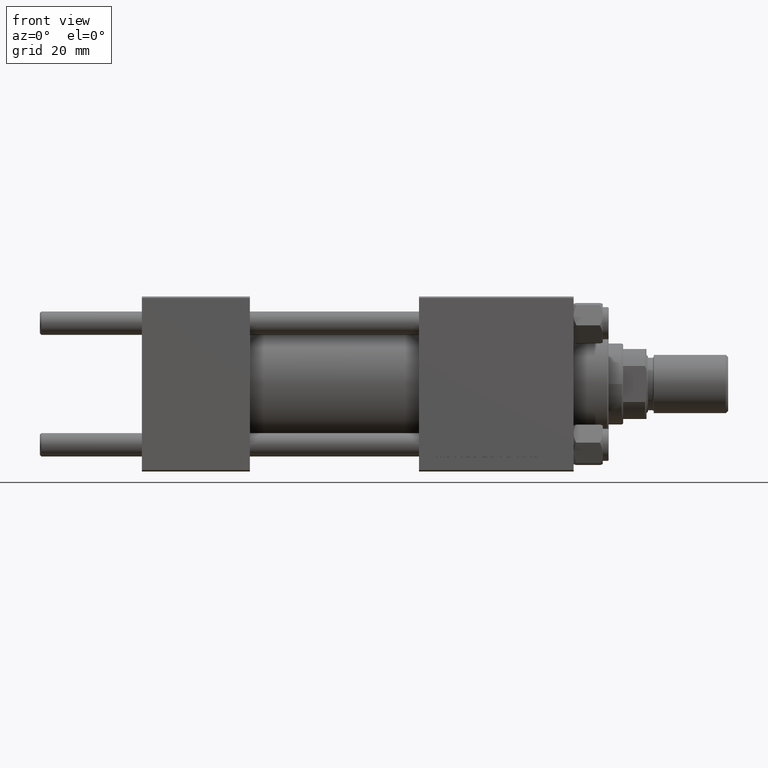
[diagram: clean part render]
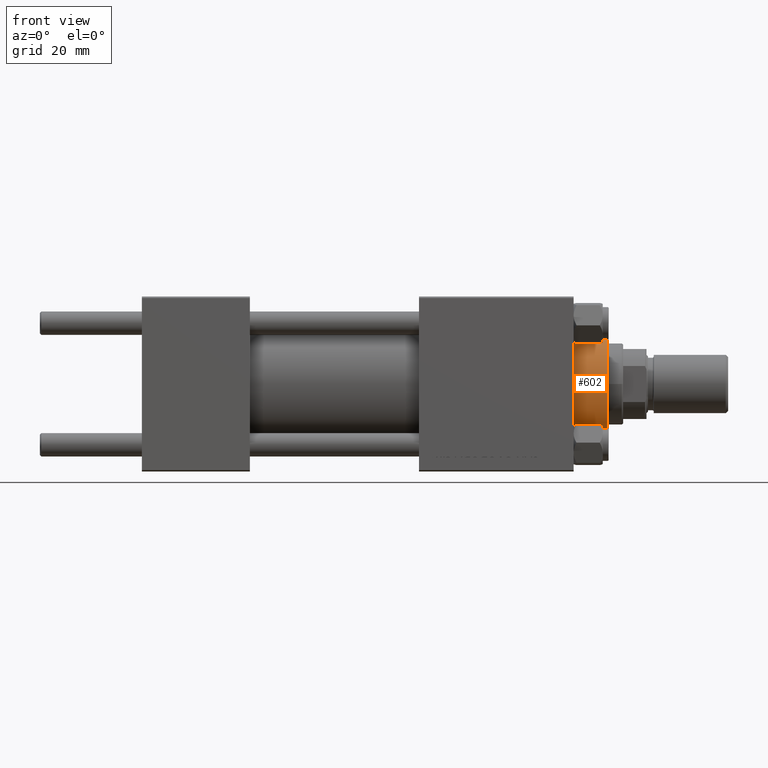
[diagram: same view with one face highlighted and labeled with its STEP entity id]
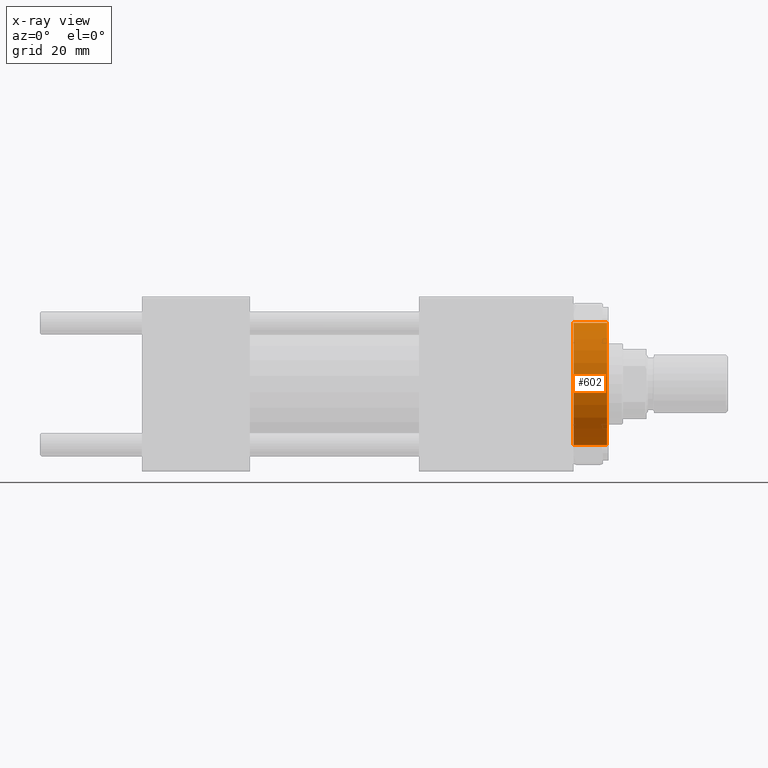
[diagram: x-ray of the same camera — body ghosted, the highlighted face saturated]
A machine part, front view. The second image highlights one B-rep face of the part: STEP entity #602.
The next image is the same camera in x-ray: the body ghosted, the highlighted face saturated — about 0% of this face is hidden behind the body in this view.
In plain terms, the highlighted cylindrical surface (partial cylindrical patch) has radius 21 mm, axis along (-1, -0, 0).
Its self-contained STEP definition (entity closure, byte-faithful):
#602 = ADVANCED_FACE ( 'NONE', ( #48717 ), #17786, .T. ) ;
#1062 = DIRECTION ( 'NONE',  ( 0.000000000000000000, 0.000000000000000000, -1.000000000000000000 ) ) ;
#1782 = CARTESIAN_POINT ( 'NONE',  ( 20.96385542168674831, -1.231570484631379969, 40.19999999999998863 ) ) ;
#4420 = ORIENTED_EDGE ( 'NONE', *, *, #43466, .T. ) ;
#5245 = EDGE_CURVE ( 'NONE', #24619, #6732, #34726, .T. ) ;
#5252 = CARTESIAN_POINT ( 'NONE',  ( 0.000000000000000000, 0.000000000000000000, 40.70000000000000284 ) ) ;
#5376 = LINE ( 'NONE', #21233, #49600 ) ;
#5833 = VERTEX_POINT ( 'NONE', #1782 ) ;
#6732 = VERTEX_POINT ( 'NONE', #16423 ) ;
#8478 = EDGE_CURVE ( 'NONE', #36806, #5833, #5376, .T. ) ;
#10610 = ORIENTED_EDGE ( 'NONE', *, *, #5245, .T. ) ;
#10942 = DIRECTION ( 'NONE',  ( 0.000000000000000000, 0.000000000000000000, -1.000000000000000000 ) ) ;
#11179 = AXIS2_PLACEMENT_3D ( 'NONE', #5252, #21115, #33392 ) ;
#12245 = AXIS2_PLACEMENT_3D ( 'NONE', #46974, #43641, #36491 ) ;
#13337 = DIRECTION ( 'NONE',  ( 1.000000000000000000, 0.000000000000000000, 0.000000000000000000 ) ) ;
#15528 = EDGE_CURVE ( 'NONE', #6732, #36806, #26140, .T. ) ;
#16423 = CARTESIAN_POINT ( 'NONE',  ( -20.96385542168674831, -1.231570484631387741, 28.69999999999999929 ) ) ;
#17786 = CYLINDRICAL_SURFACE ( 'NONE', #11179, 21.00000000000000000 ) ;
#18637 = EDGE_LOOP ( 'NONE', ( #4420, #10610, #27485, #23985 ) ) ;
#21115 = DIRECTION ( 'NONE',  ( -0.000000000000000000, -0.000000000000000000, -1.000000000000000000 ) ) ;
#21233 = CARTESIAN_POINT ( 'NONE',  ( 20.96385542168674831, -1.231570484631384410, 32.20000000000000284 ) ) ;
#23985 = ORIENTED_EDGE ( 'NONE', *, *, #8478, .T. ) ;
#24619 = VERTEX_POINT ( 'NONE', #25523 ) ;
#25523 = CARTESIAN_POINT ( 'NONE',  ( -20.96385542168674831, -1.231570484631384188, 40.19999999999998863 ) ) ;
#26140 = CIRCLE ( 'NONE', #12245, 21.00000000000000000 ) ;
#27410 = CARTESIAN_POINT ( 'NONE',  ( 20.96385542168674831, -1.231570484631392626, 28.69999999999999929 ) ) ;
#27485 = ORIENTED_EDGE ( 'NONE', *, *, #15528, .T. ) ;
#28905 = DIRECTION ( 'NONE',  ( -0.000000000000000000, -0.000000000000000000, 1.000000000000000000 ) ) ;
#31541 = AXIS2_PLACEMENT_3D ( 'NONE', #32796, #1062, #13337 ) ;
#32796 = CARTESIAN_POINT ( 'NONE',  ( 0.000000000000000000, 0.000000000000000000, 40.19999999999998863 ) ) ;
#33392 = DIRECTION ( 'NONE',  ( -1.000000000000000000, 0.000000000000000000, 0.000000000000000000 ) ) ;
#34726 = LINE ( 'NONE', #45978, #44843 ) ;
#36491 = DIRECTION ( 'NONE',  ( 1.000000000000000000, 0.000000000000000000, 0.000000000000000000 ) ) ;
#36806 = VERTEX_POINT ( 'NONE', #27410 ) ;
#40537 = CIRCLE ( 'NONE', #31541, 21.00000000000000000 ) ;
#43466 = EDGE_CURVE ( 'NONE', #5833, #24619, #40537, .T. ) ;
#43641 = DIRECTION ( 'NONE',  ( 0.000000000000000000, 0.000000000000000000, 1.000000000000000000 ) ) ;
#44843 = VECTOR ( 'NONE', #10942, 1000.000000000000000 ) ;
#45978 = CARTESIAN_POINT ( 'NONE',  ( -20.96385542168674831, -1.231570484631384410, 32.20000000000000284 ) ) ;
#46974 = CARTESIAN_POINT ( 'NONE',  ( 0.000000000000000000, 0.000000000000000000, 28.69999999999999929 ) ) ;
#48717 = FACE_OUTER_BOUND ( 'NONE', #18637, .T. ) ;
#49600 = VECTOR ( 'NONE', #28905, 1000.000000000000000 ) ;